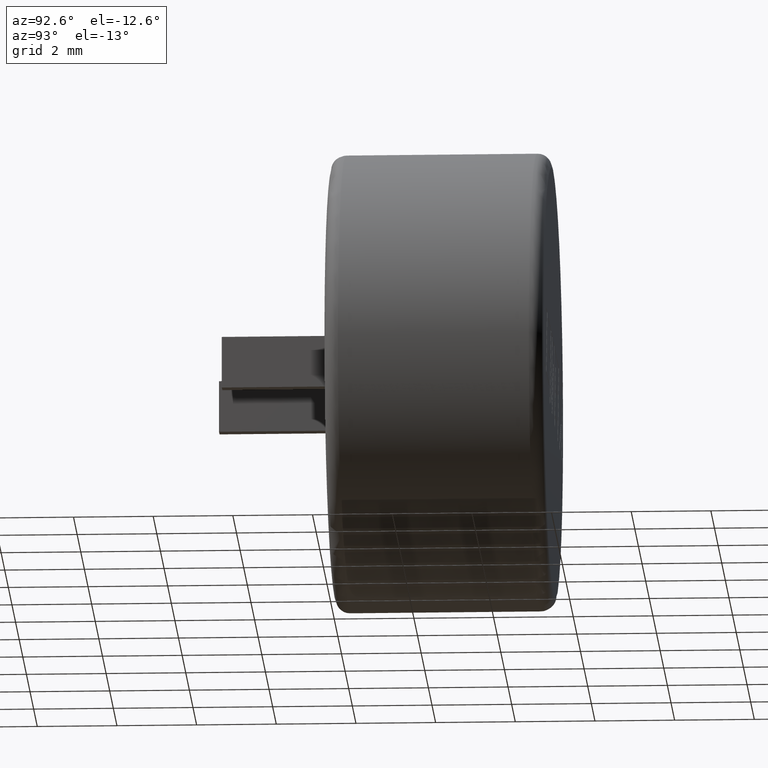
[diagram: clean part render]
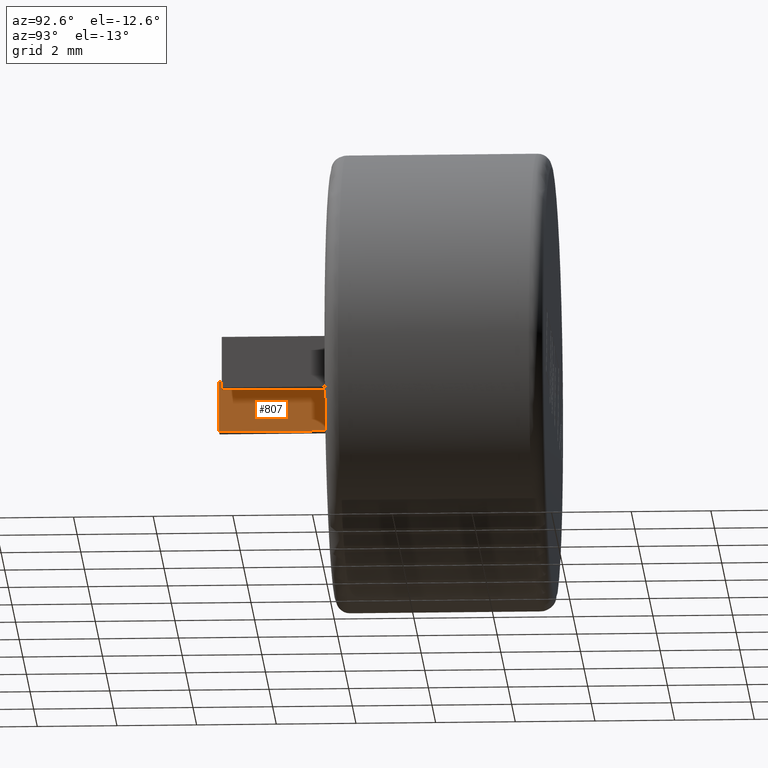
[diagram: same view with one face highlighted and labeled with its STEP entity id]
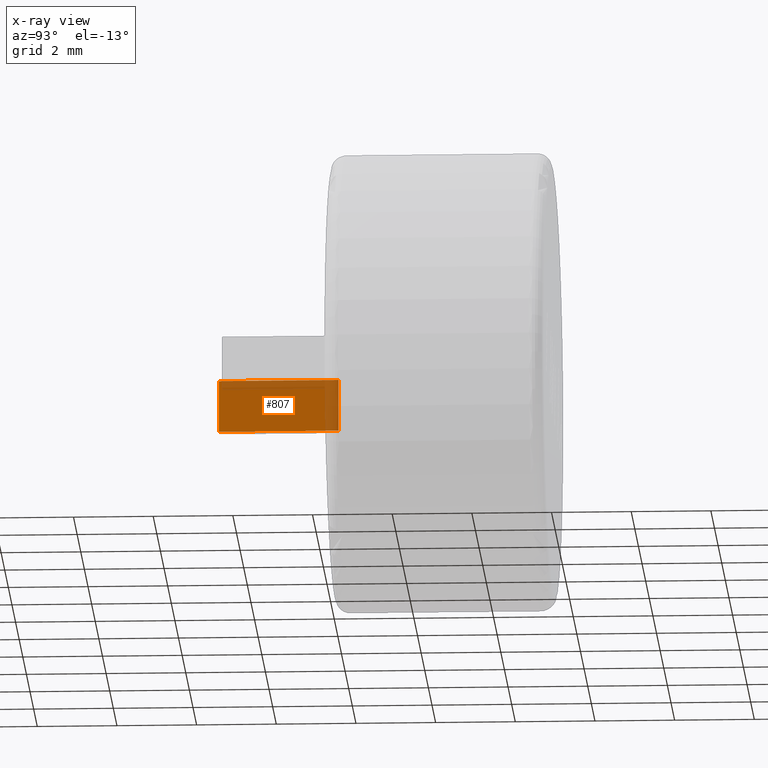
[diagram: x-ray of the same camera — body ghosted, the highlighted face saturated]
A machine part, auxiliary view. The second image highlights one B-rep face of the part: STEP entity #807.
The next image is the same camera in x-ray: the body ghosted, the highlighted face saturated — about 26% of this face is hidden behind the body in this view.
In plain terms, the highlighted planar face has unit normal (1, 0, 0).
Its self-contained STEP definition (entity closure, byte-faithful):
#116 = LINE ( 'NONE', #963, #1191 ) ;
#121 = DIRECTION ( 'NONE',  ( 1.000000000000000000, 0.0000000000000000000, 0.0000000000000000000 ) ) ;
#182 = VERTEX_POINT ( 'NONE', #2604 ) ;
#429 = DIRECTION ( 'NONE',  ( 0.0000000000000000000, -0.0000000000000000000, -1.000000000000000000 ) ) ;
#517 = CARTESIAN_POINT ( 'NONE',  ( -2.389999999999998800, -3.000000000000000000, 0.6500000000000030200 ) ) ;
#580 = CARTESIAN_POINT ( 'NONE',  ( -2.389999999999998800, -3.000000000000000000, 0.6500000000000030200 ) ) ;
#756 = PLANE ( 'NONE',  #2538 ) ;
#807 = ADVANCED_FACE ( 'NONE', ( #2362 ), #756, .T. ) ;
#888 = VECTOR ( 'NONE', #2473, 1000.000000000000000 ) ;
#928 = EDGE_CURVE ( 'NONE', #2182, #1662, #1573, .T. ) ;
#963 = CARTESIAN_POINT ( 'NONE',  ( -2.389999999999998800, -3.000000000000000000, 0.6500000000000030200 ) ) ;
#994 = VECTOR ( 'NONE', #2437, 1000.000000000000000 ) ;
#1191 = VECTOR ( 'NONE', #2615, 1000.000000000000000 ) ;
#1230 = EDGE_CURVE ( 'NONE', #1601, #1662, #1311, .T. ) ;
#1311 = LINE ( 'NONE', #1699, #2365 ) ;
#1375 = CARTESIAN_POINT ( 'NONE',  ( -2.389999999999998800, -3.000000000000000000, -0.6499999999999969100 ) ) ;
#1507 = EDGE_CURVE ( 'NONE', #182, #2182, #116, .T. ) ;
#1573 = LINE ( 'NONE', #1375, #994 ) ;
#1601 = VERTEX_POINT ( 'NONE', #1657 ) ;
#1632 = ORIENTED_EDGE ( 'NONE', *, *, #1670, .F. ) ;
#1633 = ORIENTED_EDGE ( 'NONE', *, *, #928, .T. ) ;
#1657 = CARTESIAN_POINT ( 'NONE',  ( -2.389999999999998800, 0.0000000000000000000, 0.6500000000000030200 ) ) ;
#1662 = VERTEX_POINT ( 'NONE', #1680 ) ;
#1670 = EDGE_CURVE ( 'NONE', #182, #1601, #1770, .T. ) ;
#1680 = CARTESIAN_POINT ( 'NONE',  ( -2.389999999999998800, 0.0000000000000000000, -0.6499999999999969100 ) ) ;
#1699 = CARTESIAN_POINT ( 'NONE',  ( -2.389999999999998800, 0.0000000000000000000, 0.6500000000000030200 ) ) ;
#1770 = LINE ( 'NONE', #580, #888 ) ;
#1895 = EDGE_LOOP ( 'NONE', ( #2247, #1632, #2281, #1633 ) ) ;
#2182 = VERTEX_POINT ( 'NONE', #2550 ) ;
#2245 = DIRECTION ( 'NONE',  ( 0.0000000000000000000, 0.0000000000000000000, -1.000000000000000000 ) ) ;
#2247 = ORIENTED_EDGE ( 'NONE', *, *, #1230, .F. ) ;
#2281 = ORIENTED_EDGE ( 'NONE', *, *, #1507, .T. ) ;
#2362 = FACE_OUTER_BOUND ( 'NONE', #1895, .T. ) ;
#2365 = VECTOR ( 'NONE', #429, 1000.000000000000000 ) ;
#2437 = DIRECTION ( 'NONE',  ( -0.0000000000000000000, 1.000000000000000000, -0.0000000000000000000 ) ) ;
#2473 = DIRECTION ( 'NONE',  ( -0.0000000000000000000, 1.000000000000000000, -0.0000000000000000000 ) ) ;
#2538 = AXIS2_PLACEMENT_3D ( 'NONE', #517, #121, #2245 ) ;
#2550 = CARTESIAN_POINT ( 'NONE',  ( -2.389999999999998800, -3.000000000000000000, -0.6499999999999969100 ) ) ;
#2604 = CARTESIAN_POINT ( 'NONE',  ( -2.389999999999998800, -3.000000000000000000, 0.6500000000000030200 ) ) ;
#2615 = DIRECTION ( 'NONE',  ( 0.0000000000000000000, -0.0000000000000000000, -1.000000000000000000 ) ) ;